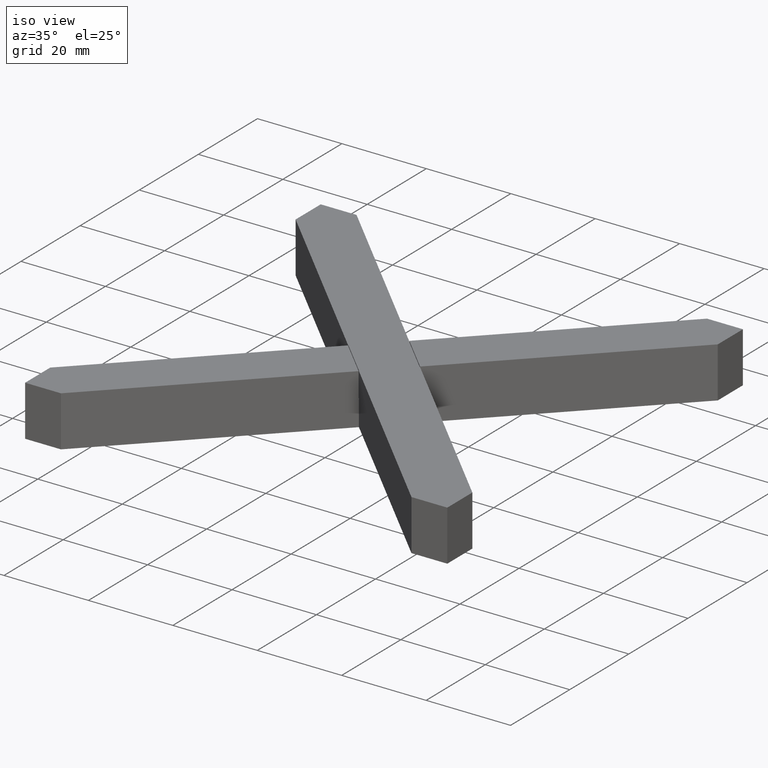
[diagram: clean part render]
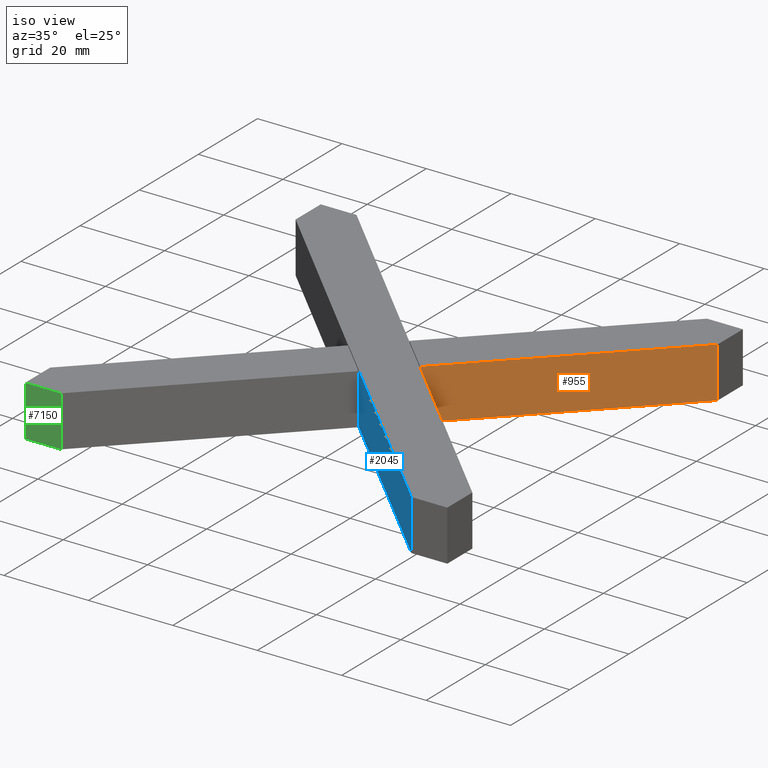
[diagram: same view with three faces highlighted in distinct colors, each labeled with its STEP entity id]
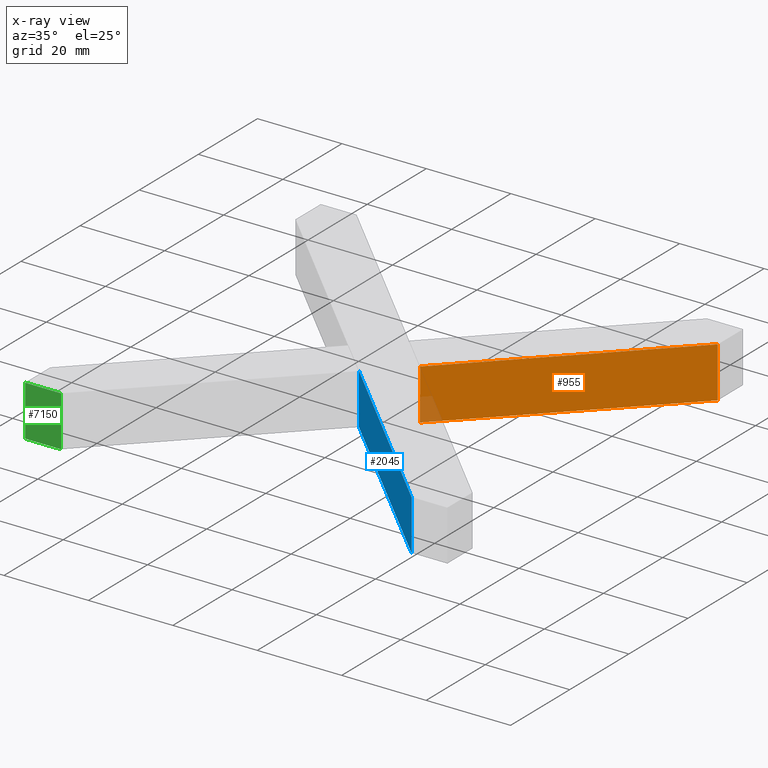
[diagram: x-ray of the same camera — body ghosted, the three highlighted faces saturated]
A machine part, iso view with three faces highlighted in distinct colors.
The next image is the same camera in x-ray (body ghosted, the three faces saturated) — at least one of them is partly hidden behind the body in this view.
Their STEP definitions:

[orange] entity #955 — the highlighted planar face has unit normal (-0.7071, 0.7071, 0).
#315 = EDGE_LOOP ( 'NONE', ( #9906, #8713, #7087, #13242, #10645, #7048 ) ) ;
#440 = VECTOR ( 'NONE', #4521, 1000.000000000000000 ) ;
#478 = CARTESIAN_POINT ( 'NONE',  ( 50.00000000000000000, 41.51471862576145355, 12.00000000000000000 ) ) ;
#596 = DIRECTION ( 'NONE',  ( -0.000000000000000000, -0.000000000000000000, -1.000000000000000000 ) ) ;
#949 = EDGE_CURVE ( 'NONE', #8149, #9051, #6737, .T. ) ;
#955 = ADVANCED_FACE ( 'NONE', ( #4819 ), #8811, .F. ) ;
#1020 = LINE ( 'NONE', #6610, #12342 ) ;
#1203 = DIRECTION ( 'NONE',  ( -0.7071067811865473507, -0.7071067811865477948, 0.000000000000000000 ) ) ;
#1480 = CARTESIAN_POINT ( 'NONE',  ( 8.520636713297887965, 0.03535533905932997795, 6.000000000000000000 ) ) ;
#1663 = VECTOR ( 'NONE', #8225, 1000.000000000000000 ) ;
#1794 = CARTESIAN_POINT ( 'NONE',  ( 8.520636713297895071, 0.03535533905932197740, 12.00000000000000000 ) ) ;
#2165 = CARTESIAN_POINT ( 'NONE',  ( 8.485281374238560659, -1.084202172485504434E-14, 12.00000000000000000 ) ) ;
#3149 = CARTESIAN_POINT ( 'NONE',  ( 50.00000000000000000, 41.51471862576145355, 0.000000000000000000 ) ) ;
#3811 = CARTESIAN_POINT ( 'NONE',  ( 8.520636713297887965, 0.03535533905932997795, 6.000000000000000000 ) ) ;
#3900 = VERTEX_POINT ( 'NONE', #3149 ) ;
#4351 = VERTEX_POINT ( 'NONE', #9866 ) ;
#4481 = DIRECTION ( 'NONE',  ( 0.7071067811865473507, 0.7071067811865477948, 0.000000000000000000 ) ) ;
#4521 = DIRECTION ( 'NONE',  ( 0.7071067811865473507, 0.7071067811865477948, 0.000000000000000000 ) ) ;
#4819 = FACE_OUTER_BOUND ( 'NONE', #315, .T. ) ;
#5723 = LINE ( 'NONE', #6014, #8639 ) ;
#6014 = CARTESIAN_POINT ( 'NONE',  ( 50.00000000000000000, 41.51471862576145355, 12.00000000000000000 ) ) ;
#6257 = EDGE_CURVE ( 'NONE', #13830, #7251, #1020, .T. ) ;
#6610 = CARTESIAN_POINT ( 'NONE',  ( 8.485281374238560659, -1.084202172485504434E-14, 12.00000000000000000 ) ) ;
#6737 = LINE ( 'NONE', #9812, #11707 ) ;
#7048 = ORIENTED_EDGE ( 'NONE', *, *, #13208, .F. ) ;
#7087 = ORIENTED_EDGE ( 'NONE', *, *, #949, .F. ) ;
#7251 = VERTEX_POINT ( 'NONE', #478 ) ;
#7677 = DIRECTION ( 'NONE',  ( -0.7071067811865477948, 0.7071067811865473507, 0.000000000000000000 ) ) ;
#7832 = LINE ( 'NONE', #11996, #9002 ) ;
#8112 = EDGE_CURVE ( 'NONE', #9051, #13830, #13655, .T. ) ;
#8149 = VERTEX_POINT ( 'NONE', #9315 ) ;
#8225 = DIRECTION ( 'NONE',  ( -0.000000000000000000, -0.000000000000000000, 1.000000000000000000 ) ) ;
#8639 = VECTOR ( 'NONE', #596, 1000.000000000000000 ) ;
#8713 = ORIENTED_EDGE ( 'NONE', *, *, #8112, .F. ) ;
#8811 = PLANE ( 'NONE',  #10632 ) ;
#8829 = DIRECTION ( 'NONE',  ( -0.000000000000000000, -0.000000000000000000, -1.000000000000000000 ) ) ;
#9002 = VECTOR ( 'NONE', #8829, 1000.000000000000000 ) ;
#9051 = VERTEX_POINT ( 'NONE', #3811 ) ;
#9315 = CARTESIAN_POINT ( 'NONE',  ( 8.485281374238553553, -3.964114193150125587E-15, 6.000000000000000000 ) ) ;
#9718 = EDGE_CURVE ( 'NONE', #4351, #3900, #10916, .T. ) ;
#9812 = CARTESIAN_POINT ( 'NONE',  ( 8.449926035179235129, -0.03535533905932477378, 6.000000000000000000 ) ) ;
#9866 = CARTESIAN_POINT ( 'NONE',  ( 8.485281374238560659, -1.084202172485504434E-14, 0.000000000000000000 ) ) ;
#9906 = ORIENTED_EDGE ( 'NONE', *, *, #6257, .F. ) ;
#10632 = AXIS2_PLACEMENT_3D ( 'NONE', #2165, #7677, #1203 ) ;
#10645 = ORIENTED_EDGE ( 'NONE', *, *, #9718, .T. ) ;
#10916 = LINE ( 'NONE', #11254, #440 ) ;
#11108 = EDGE_CURVE ( 'NONE', #8149, #4351, #7832, .T. ) ;
#11254 = CARTESIAN_POINT ( 'NONE',  ( 8.485281374238560659, -1.084202172485504434E-14, 0.000000000000000000 ) ) ;
#11707 = VECTOR ( 'NONE', #12173, 1000.000000000000114 ) ;
#11996 = CARTESIAN_POINT ( 'NONE',  ( 8.485281374238560659, -1.084202172485504434E-14, 12.00000000000000000 ) ) ;
#12173 = DIRECTION ( 'NONE',  ( 0.7071067811865392461, 0.7071067811865556774, 0.000000000000000000 ) ) ;
#12342 = VECTOR ( 'NONE', #4481, 1000.000000000000000 ) ;
#13208 = EDGE_CURVE ( 'NONE', #7251, #3900, #5723, .T. ) ;
#13242 = ORIENTED_EDGE ( 'NONE', *, *, #11108, .T. ) ;
#13655 = LINE ( 'NONE', #1480, #1663 ) ;
#13830 = VERTEX_POINT ( 'NONE', #1794 ) ;

[blue] entity #2045 — the highlighted planar face has unit normal (0.7071, 0.7071, -0).
#231 = VERTEX_POINT ( 'NONE', #5825 ) ;
#441 = DIRECTION ( 'NONE',  ( -0.7071067811865477948, 0.7071067811865473507, 0.000000000000000000 ) ) ;
#1516 = CARTESIAN_POINT ( 'NONE',  ( -1.564418524095811927E-15, -8.485281374238574870, 12.00000000000000000 ) ) ;
#2043 = ORIENTED_EDGE ( 'NONE', *, *, #13373, .F. ) ;
#2045 = ADVANCED_FACE ( 'NONE', ( #4725 ), #2521, .F. ) ;
#2147 = EDGE_LOOP ( 'NONE', ( #8806, #2043, #4711, #11417, #3401 ) ) ;
#2210 = AXIS2_PLACEMENT_3D ( 'NONE', #1516, #9123, #441 ) ;
#2521 = PLANE ( 'NONE',  #2210 ) ;
#3401 = ORIENTED_EDGE ( 'NONE', *, *, #3710, .T. ) ;
#3633 = DIRECTION ( 'NONE',  ( -0.000000000000000000, -0.000000000000000000, -1.000000000000000000 ) ) ;
#3710 = EDGE_CURVE ( 'NONE', #7597, #13557, #5156, .T. ) ;
#3924 = CARTESIAN_POINT ( 'NONE',  ( -1.564418524095811927E-15, -8.485281374238574870, 12.00000000000000000 ) ) ;
#4072 = DIRECTION ( 'NONE',  ( -0.000000000000000000, -0.000000000000000000, -1.000000000000000000 ) ) ;
#4324 = CARTESIAN_POINT ( 'NONE',  ( -1.799775606325937360E-14, -8.485281374238557106, 12.00000000000000000 ) ) ;
#4711 = ORIENTED_EDGE ( 'NONE', *, *, #7335, .F. ) ;
#4725 = FACE_OUTER_BOUND ( 'NONE', #2147, .T. ) ;
#5156 = LINE ( 'NONE', #3924, #12028 ) ;
#5538 = LINE ( 'NONE', #8635, #11222 ) ;
#5825 = CARTESIAN_POINT ( 'NONE',  ( 41.51471862576144645, -50.00000000000000000, 12.00000000000000000 ) ) ;
#5997 = DIRECTION ( 'NONE',  ( 0.7071067811865477948, -0.7071067811865473507, 0.000000000000000000 ) ) ;
#6009 = DIRECTION ( 'NONE',  ( 0.7071067811865477948, -0.7071067811865473507, 0.000000000000000000 ) ) ;
#6093 = CARTESIAN_POINT ( 'NONE',  ( -1.564418524095811927E-15, -8.485281374238574870, 12.00000000000000000 ) ) ;
#7335 = EDGE_CURVE ( 'NONE', #11810, #231, #11623, .T. ) ;
#7597 = VERTEX_POINT ( 'NONE', #11026 ) ;
#7827 = VERTEX_POINT ( 'NONE', #9955 ) ;
#8027 = VECTOR ( 'NONE', #5997, 999.9999999999998863 ) ;
#8635 = CARTESIAN_POINT ( 'NONE',  ( 41.51471862576144645, -50.00000000000000000, 12.00000000000000000 ) ) ;
#8806 = ORIENTED_EDGE ( 'NONE', *, *, #11906, .T. ) ;
#9123 = DIRECTION ( 'NONE',  ( 0.7071067811865473507, 0.7071067811865477948, -0.000000000000000000 ) ) ;
#9853 = LINE ( 'NONE', #12443, #10034 ) ;
#9955 = CARTESIAN_POINT ( 'NONE',  ( 41.51471862576144645, -50.00000000000000000, 0.000000000000000000 ) ) ;
#10034 = VECTOR ( 'NONE', #6009, 999.9999999999998863 ) ;
#10379 = CARTESIAN_POINT ( 'NONE',  ( -1.564418524095811927E-15, -8.485281374238574870, 12.00000000000000000 ) ) ;
#10532 = EDGE_CURVE ( 'NONE', #11810, #7597, #11598, .T. ) ;
#11026 = CARTESIAN_POINT ( 'NONE',  ( -1.833295651976454735E-14, -8.485281374238557106, 6.000000000000000000 ) ) ;
#11222 = VECTOR ( 'NONE', #3633, 1000.000000000000000 ) ;
#11417 = ORIENTED_EDGE ( 'NONE', *, *, #10532, .T. ) ;
#11598 = LINE ( 'NONE', #10379, #12290 ) ;
#11623 = LINE ( 'NONE', #6093, #8027 ) ;
#11638 = DIRECTION ( 'NONE',  ( -0.000000000000000000, -0.000000000000000000, -1.000000000000000000 ) ) ;
#11810 = VERTEX_POINT ( 'NONE', #4324 ) ;
#11875 = CARTESIAN_POINT ( 'NONE',  ( -1.564418524095811927E-15, -8.485281374238574870, 0.000000000000000000 ) ) ;
#11906 = EDGE_CURVE ( 'NONE', #13557, #7827, #9853, .T. ) ;
#12028 = VECTOR ( 'NONE', #4072, 1000.000000000000000 ) ;
#12290 = VECTOR ( 'NONE', #11638, 1000.000000000000000 ) ;
#12443 = CARTESIAN_POINT ( 'NONE',  ( -1.564418524095811927E-15, -8.485281374238574870, 0.000000000000000000 ) ) ;
#13373 = EDGE_CURVE ( 'NONE', #231, #7827, #5538, .T. ) ;
#13557 = VERTEX_POINT ( 'NONE', #11875 ) ;

[green] entity #7150 — the highlighted planar face has unit normal (-0, 1, 0).
#227 = CARTESIAN_POINT ( 'NONE',  ( -49.99999999999998579, -50.00000000000000711, 0.000000000000000000 ) ) ;
#265 = LINE ( 'NONE', #3535, #428 ) ;
#322 = DIRECTION ( 'NONE',  ( 1.000000000000000000, 8.177564888977990473E-16, 0.000000000000000000 ) ) ;
#428 = VECTOR ( 'NONE', #12728, 1000.000000000000000 ) ;
#465 = EDGE_CURVE ( 'NONE', #7598, #11110, #11536, .T. ) ;
#1508 = DIRECTION ( 'NONE',  ( -1.000000000000000000, -8.177564888977990473E-16, 0.000000000000000000 ) ) ;
#2512 = PLANE ( 'NONE',  #7924 ) ;
#3205 = CARTESIAN_POINT ( 'NONE',  ( -49.99999999999998579, -50.00000000000000711, 12.00000000000000000 ) ) ;
#3535 = CARTESIAN_POINT ( 'NONE',  ( -41.51471862576141092, -50.00000000000000000, 12.00000000000000000 ) ) ;
#3538 = EDGE_CURVE ( 'NONE', #4259, #13430, #10301, .T. ) ;
#3587 = ORIENTED_EDGE ( 'NONE', *, *, #465, .T. ) ;
#4259 = VERTEX_POINT ( 'NONE', #3205 ) ;
#4306 = CARTESIAN_POINT ( 'NONE',  ( -49.99999999999998579, -50.00000000000000711, 0.000000000000000000 ) ) ;
#4642 = ORIENTED_EDGE ( 'NONE', *, *, #10202, .T. ) ;
#4653 = DIRECTION ( 'NONE',  ( -8.177564888977990473E-16, 1.000000000000000000, 0.000000000000000000 ) ) ;
#5754 = EDGE_LOOP ( 'NONE', ( #3587, #9316, #13035, #4642 ) ) ;
#5760 = CARTESIAN_POINT ( 'NONE',  ( -49.99999999999998579, -50.00000000000000711, 12.00000000000000000 ) ) ;
#5793 = FACE_OUTER_BOUND ( 'NONE', #5754, .T. ) ;
#5933 = CARTESIAN_POINT ( 'NONE',  ( -49.99999999999998579, -50.00000000000000711, 12.00000000000000000 ) ) ;
#6580 = DIRECTION ( 'NONE',  ( 1.000000000000000000, 8.177564888977990473E-16, 0.000000000000000000 ) ) ;
#6877 = DIRECTION ( 'NONE',  ( -0.000000000000000000, -0.000000000000000000, -1.000000000000000000 ) ) ;
#7150 = ADVANCED_FACE ( 'NONE', ( #5793 ), #2512, .F. ) ;
#7598 = VERTEX_POINT ( 'NONE', #227 ) ;
#7924 = AXIS2_PLACEMENT_3D ( 'NONE', #11286, #4653, #1508 ) ;
#8590 = VECTOR ( 'NONE', #322, 1000.000000000000000 ) ;
#8620 = VECTOR ( 'NONE', #6580, 1000.000000000000000 ) ;
#9316 = ORIENTED_EDGE ( 'NONE', *, *, #10575, .F. ) ;
#10202 = EDGE_CURVE ( 'NONE', #4259, #7598, #13136, .T. ) ;
#10301 = LINE ( 'NONE', #5933, #8590 ) ;
#10575 = EDGE_CURVE ( 'NONE', #13430, #11110, #265, .T. ) ;
#11110 = VERTEX_POINT ( 'NONE', #13194 ) ;
#11286 = CARTESIAN_POINT ( 'NONE',  ( -49.99999999999998579, -50.00000000000000711, 12.00000000000000000 ) ) ;
#11536 = LINE ( 'NONE', #4306, #8620 ) ;
#12451 = CARTESIAN_POINT ( 'NONE',  ( -41.51471862576141092, -50.00000000000000000, 12.00000000000000000 ) ) ;
#12728 = DIRECTION ( 'NONE',  ( -0.000000000000000000, -0.000000000000000000, -1.000000000000000000 ) ) ;
#13035 = ORIENTED_EDGE ( 'NONE', *, *, #3538, .F. ) ;
#13136 = LINE ( 'NONE', #5760, #14166 ) ;
#13194 = CARTESIAN_POINT ( 'NONE',  ( -41.51471862576141092, -50.00000000000000000, 0.000000000000000000 ) ) ;
#13430 = VERTEX_POINT ( 'NONE', #12451 ) ;
#14166 = VECTOR ( 'NONE', #6877, 1000.000000000000000 ) ;